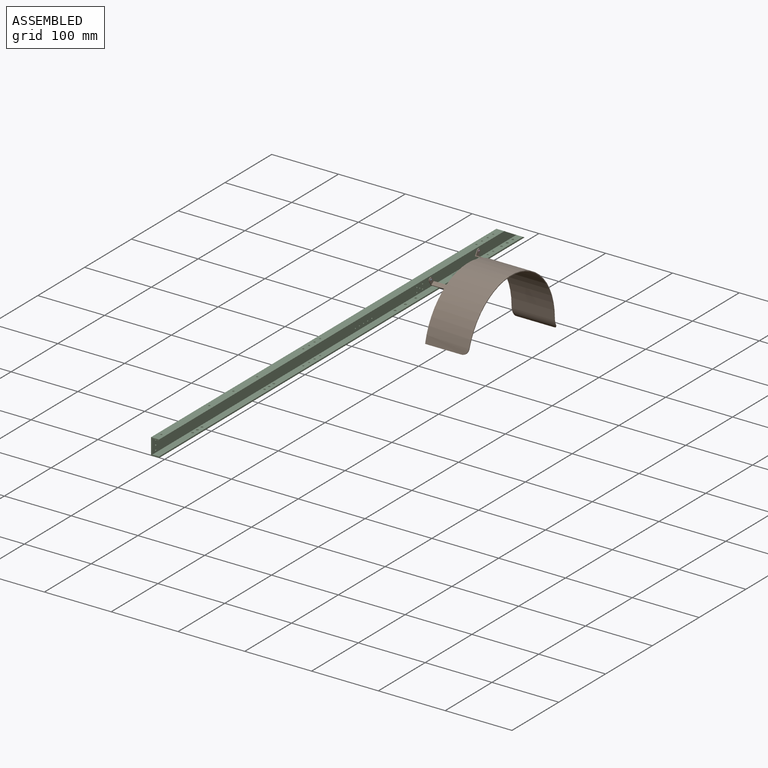
[diagram: assembled view]
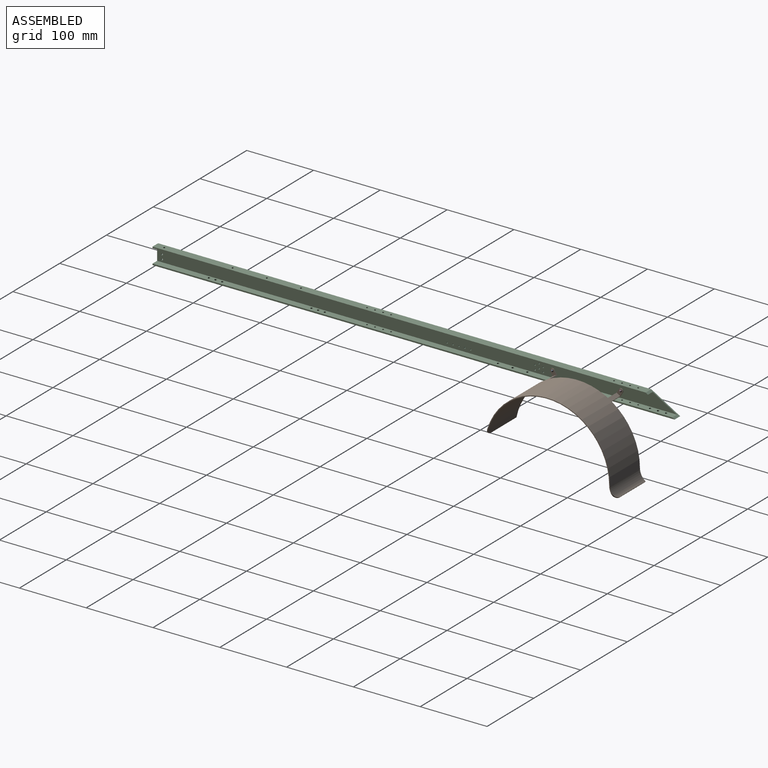
[diagram: assembled view, second angle]
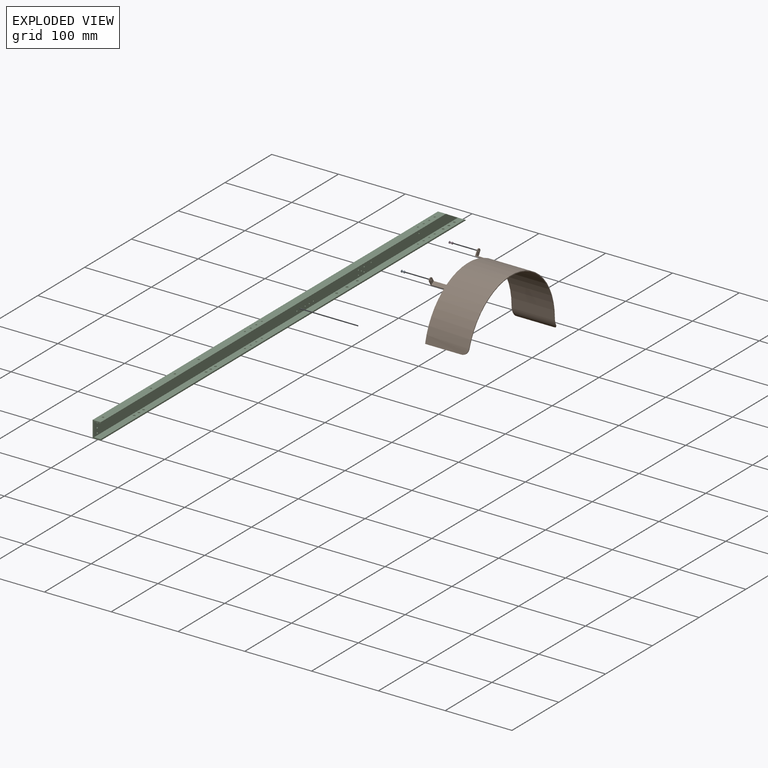
[diagram: exploded view]
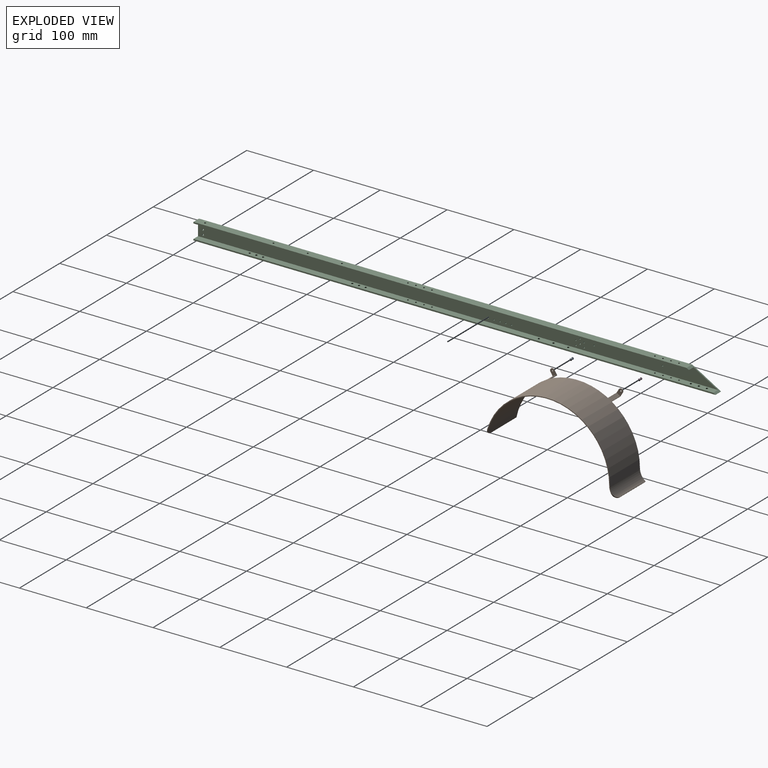
[diagram: exploded view, second angle]
ASSEMBLY  parts=4 mates=3
PART A: 5 faces, bbox 6.3x3.5x3.5 mm
  f0: sphere r=1.9mm, area 13.8mm2, adj f4
  f1: sphere r=1.9mm, area 13.8mm2, adj f2
  f2: plane 3.5x3.5mm, normal (-1,0,0), area 6.5mm2, adj f1,f3
  f3: cylinder r=1mm len=4mm, axis (-1,0,0), area 25.1mm2, adj f2,f4
  f4: plane 3.5x3.5mm, normal (1,0,0), area 6.5mm2, adj f0,f3
PART B: 28 faces, bbox 85x196x111 mm
  f0: cylinder r=92.8mm len=183.64mm, axis (-1,0,0), area 16789.7mm2, adj f1,f5,f6,f7,f8,f10,f15,f16
  f1: cylinder r=20.4mm len=64mm, axis (-1,0,0), area 1266.2mm2, adj f0,f2,f6,f7,f9
  f2: plane 54.4x1mm, normal (0,0.83,-0.55), area 65.3mm2, adj f1,f3,f7,f9
  f3: cylinder r=19.2mm len=64mm, axis (-1,0,0), area 1190.5mm2, adj f2,f4,f6,f7,f9
  f4: cylinder r=94mm len=186.02mm, axis (-1,0,0), area 17642.5mm2, adj f3,f5,f6,f7,f8
  f5: plane 54.4x1.17mm, normal (0,-0.2,-0.98), area 65.3mm2, adj f0,f4,f7,f8
  f6: plane 185.59x103.69mm, normal (1,0,0), area 328.9mm2, adj f0,f1,f3,f4,f8,f9
  f7: plane 194.61x111mm, normal (-1,0,0), area 352.2mm2, adj f0,f1,f2,f3,f4,f5,f11,f15
  f8: cylinder r=9.6mm len=9.74mm, axis (0,-0.98,0.2), area 18.1mm2, adj f0,f4,f5,f6
  f9: cylinder r=9.6mm len=10.09mm, axis (0,-0.55,-0.83), area 18.6mm2, adj f1,f2,f3,f6
  f10: plane 6.07x4.28mm, normal (1,0,0), area 7.6mm2, adj f0,f12,f15,f16
  f11: plane 19.8x5.48mm, normal (0,-0.52,0.86), area 126.7mm2, adj f7,f14,f15,f16
  f12: plane 70x5.48mm, normal (0,0.52,-0.86), area 448mm2, adj f10,f13,f15,f16
  f13: plane 11.36x9.86mm, normal (-1,0,0), area 61.6mm2, adj f12,f15,f16,f17,f18
  f14: plane 10.33x9.24mm, normal (1,0,0), area 53.9mm2, adj f11,f15,f16,f17,f18
  f15: plane 70x6.51mm, normal (0,0.86,0.52), area 89mm2, adj f0,f7,f10,f11,f12,f13,f14,f17
  f16: plane 70x6.51mm, normal (0,-0.86,-0.52), area 89mm2, adj f0,f7,f10,f11,f12,f13,f14,f17
  f17: cylinder r=3.2mm len=5.94mm, axis (-1,0,0), area 12.1mm2, adj f13,f14,f15,f16
  f18: cylinder r=1mm len=2mm, axis (1,0,0), area 7.5mm2, adj f13,f14
  f19: plane 6.07x4.28mm, normal (1,0,0), area 7.6mm2, adj f0,f23,f24,f25
  f20: plane 19.8x5.48mm, normal (0,0.52,0.86), area 126.7mm2, adj f7,f21,f24,f25
  f21: plane 10.33x9.24mm, normal (1,0,0), area 53.9mm2, adj f20,f24,f25,f26,f27
  f22: plane 11.36x9.86mm, normal (-1,0,0), area 61.6mm2, adj f23,f24,f25,f26,f27
  f23: plane 70x5.48mm, normal (0,-0.52,-0.86), area 448mm2, adj f19,f22,f24,f25
  f24: plane 70x6.51mm, normal (0,-0.86,0.52), area 89mm2, adj f0,f7,f19,f20,f21,f22,f23,f26
  f25: plane 70x6.51mm, normal (0,0.86,-0.52), area 89mm2, adj f0,f7,f19,f20,f21,f22,f23,f26
  f26: cylinder r=3.2mm len=5.94mm, axis (1,0,0), area 12.1mm2, adj f21,f22,f24,f25
  f27: cylinder r=1mm len=2mm, axis (1,0,0), area 7.5mm2, adj f21,f22
PART C: 60 faces, bbox 12x781.6x25 mm
  f0: plane 781.6x2mm, normal (1,0,0), area 1559.7mm2, adj f1,f7,f8,f9
  f1: plane 778.14x10mm, normal (0,0,1), area 7642.5mm2, adj f0,f2,f8,f9,f10,f12,f14,f16
  f2: plane 778.14x21mm, normal (1,0,0), area 15897.1mm2, adj f1,f3,f8,f9,f26,f27,f28,f29
  f3: plane 741.76x10mm, normal (0,0,-1), area 7353.7mm2, adj f2,f4,f8,f9,f11,f13,f15,f17
  f4: plane 741.76x2mm, normal (1,0,0), area 1480.1mm2, adj f3,f5,f8,f9
  f5: plane 738.3x12mm, normal (0,0,1), area 8795.7mm2, adj f4,f6,f8,f9,f11,f13,f15,f17
  f6: plane 781.6x25mm, normal (-1,0,0), area 18936.9mm2, adj f5,f7,f8,f9,f26,f27,f28,f29
  f7: plane 781.6x12mm, normal (0,0,-1), area 9240.3mm2, adj f0,f6,f8,f9,f10,f12,f14,f16
  f8: plane 25x12mm, normal (0,-1,0), area 90mm2, adj f0,f1,f2,f3,f4,f5,f6,f7
  f9: plane 43.3x25mm, normal (0,0.5,0.87), area 180mm2, adj f0,f1,f2,f3,f4,f5,f6,f7
  f10: cylinder r=1.25mm len=2.5mm, axis (0,0,1), area 15.7mm2, adj f1,f7
  f11: cylinder r=1.25mm len=2.5mm, axis (0,0,1), area 15.7mm2, adj f3,f5
  f12: cylinder r=1.25mm len=2.5mm, axis (0,0,1), area 15.7mm2, adj f1,f7
  f13: cylinder r=1.25mm len=2.5mm, axis (0,0,1), area 15.7mm2, adj f3,f5
  f14: cylinder r=1.25mm len=2.5mm, axis (0,0,1), area 15.7mm2, adj f1,f7
  f15: cylinder r=1.25mm len=2.5mm, axis (0,0,1), area 15.7mm2, adj f3,f5
  f16: cylinder r=1.25mm len=2.5mm, axis (0,0,1), area 15.7mm2, adj f1,f7
  f17: cylinder r=1.25mm len=2.5mm, axis (0,0,1), area 15.7mm2, adj f3,f5
  f18: cylinder r=1.25mm len=2.5mm, axis (0,0,1), area 15.7mm2, adj f1,f7
  f19: cylinder r=1.25mm len=2.5mm, axis (0,0,1), area 15.7mm2, adj f3,f5
  f20: cylinder r=1.25mm len=2.5mm, axis (0,0,1), area 15.7mm2, adj f1,f7
  f21: cylinder r=1.25mm len=2.5mm, axis (0,0,1), area 15.7mm2, adj f3,f5
  f22: cylinder r=1.25mm len=2.5mm, axis (0,0,1), area 15.7mm2, adj f1,f7
  f23: cylinder r=1.25mm len=2.5mm, axis (0,0,1), area 15.7mm2, adj f3,f5
  f24: cylinder r=1.25mm len=2.5mm, axis (0,0,1), area 15.7mm2, adj f1,f7
  f25: cylinder r=1.25mm len=2.5mm, axis (0,0,1), area 15.7mm2, adj f3,f5
  f26: cylinder r=1.25mm len=2.5mm, axis (-1,0,0), area 15.7mm2, adj f2,f6
  f27: cylinder r=1.25mm len=2.5mm, axis (-1,0,0), area 15.7mm2, adj f2,f6
  f28: cylinder r=1.25mm len=2.5mm, axis (-1,0,0), area 15.7mm2, adj f2,f6
  f29: cylinder r=1mm len=2mm, axis (-1,0,0), area 12.6mm2, adj f2,f6
  f30: cylinder r=1mm len=2mm, axis (-1,0,0), area 12.6mm2, adj f2,f6
  f31: cylinder r=1mm len=2mm, axis (-1,0,0), area 12.6mm2, adj f2,f6
  f32: cylinder r=1mm len=2mm, axis (-1,0,0), area 12.6mm2, adj f2,f6
  f33: cylinder r=1mm len=2mm, axis (-1,0,0), area 12.6mm2, adj f2,f6
  f34: cylinder r=1mm len=2mm, axis (-1,0,0), area 12.6mm2, adj f2,f6
  f35: cylinder r=1mm len=2mm, axis (-1,0,0), area 12.6mm2, adj f2,f6
  f36: cylinder r=1mm len=2mm, axis (-1,0,0), area 12.6mm2, adj f2,f6
  f37: cylinder r=1mm len=2mm, axis (-1,0,0), area 12.6mm2, adj f2,f6
  f38: cylinder r=1mm len=2mm, axis (-1,0,0), area 12.6mm2, adj f2,f6
  f39: cylinder r=1mm len=2mm, axis (-1,0,0), area 12.6mm2, adj f2,f6
  f40: cylinder r=1mm len=2mm, axis (-1,0,0), area 12.6mm2, adj f2,f6
  f41: cylinder r=1mm len=2mm, axis (-1,0,0), area 12.6mm2, adj f2,f6
  f42: cylinder r=1.6mm len=3.2mm, axis (0,0,-1), area 20.1mm2, adj f1,f7
  f43: cylinder r=1.6mm len=3.2mm, axis (0,0,-1), area 20.1mm2, adj f1,f7
  f44: cylinder r=1.6mm len=3.2mm, axis (0,0,-1), area 20.1mm2, adj f1,f7
  f45: cylinder r=1.6mm len=3.2mm, axis (0,0,-1), area 20.1mm2, adj f1,f7
  f46: cylinder r=1.6mm len=3.2mm, axis (0,0,-1), area 20.1mm2, adj f1,f7
  f47: cylinder r=1.6mm len=3.2mm, axis (0,0,-1), area 20.1mm2, adj f1,f7
  f48: cylinder r=1.6mm len=3.2mm, axis (0,0,-1), area 20.1mm2, adj f1,f7
  f49: cylinder r=1.6mm len=3.2mm, axis (0,0,-1), area 20.1mm2, adj f1,f7
  f50: cylinder r=1.6mm len=3.2mm, axis (0,0,-1), area 20.1mm2, adj f1,f7
  f51: cylinder r=1.7mm len=3.4mm, axis (0,0,-1), area 21.4mm2, adj f1,f7
  f52: cylinder r=1.7mm len=3.4mm, axis (0,0,-1), area 21.4mm2, adj f1,f7
  f53: cylinder r=1.7mm len=3.4mm, axis (0,0,-1), area 21.4mm2, adj f1,f7
  f54: cylinder r=1.4mm len=2.8mm, axis (0,0,1), area 17.6mm2, adj f3,f5
  f55: cylinder r=1.4mm len=2.8mm, axis (0,0,1), area 17.6mm2, adj f3,f5
  f56: cylinder r=1.4mm len=2.8mm, axis (0,0,1), area 17.6mm2, adj f3,f5
  f57: cylinder r=1.4mm len=2.8mm, axis (0,0,1), area 17.6mm2, adj f3,f5
  f58: cylinder r=1mm len=2mm, axis (1,0,0), area 12.6mm2, adj f2,f6
  f59: cylinder r=1mm len=2mm, axis (1,0,0), area 12.6mm2, adj f2,f6
PART D: same geometry as A
PLACE A t=(6.96,213.76,8.14)mm
PLACE B t=(-74.24,-379.04,-4.36)mm
PLACE C t=(-75.04,-379.04,-4.36)mm
PLACE D t=(6.96,316.16,8.14)mm
MATE fastened D.f3 <-> C.f59  axis (1,0,0) through (4.96,316.16,8.14)mm
MATE fastened A.f3 <-> B.f18  axis (-1,0,0) through (8.96,213.76,8.14)mm
MATE fastened D.f3 <-> B.f26  axis (-1,0,0) through (8.96,316.16,8.14)mm
